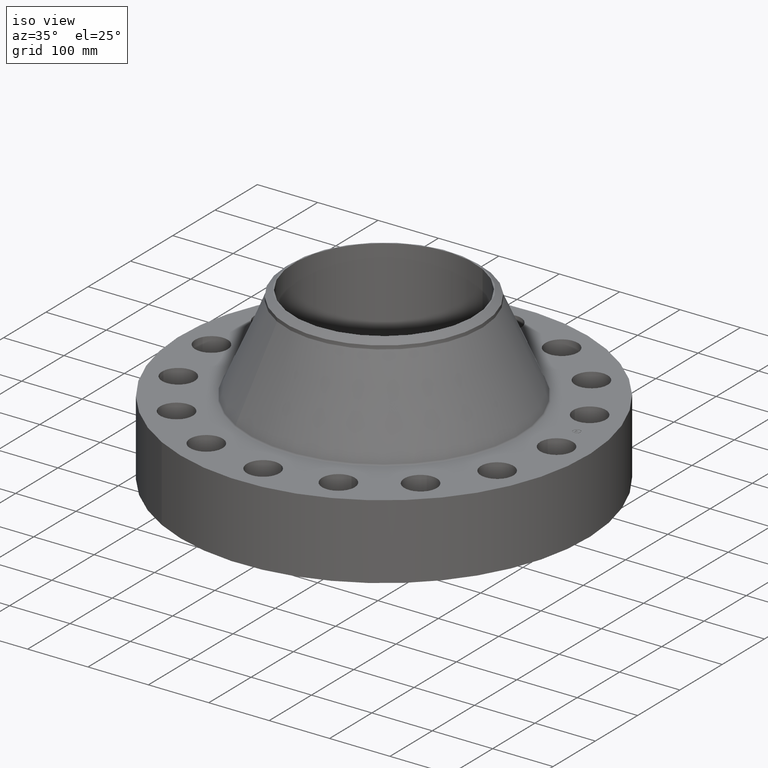
[diagram: clean part render]
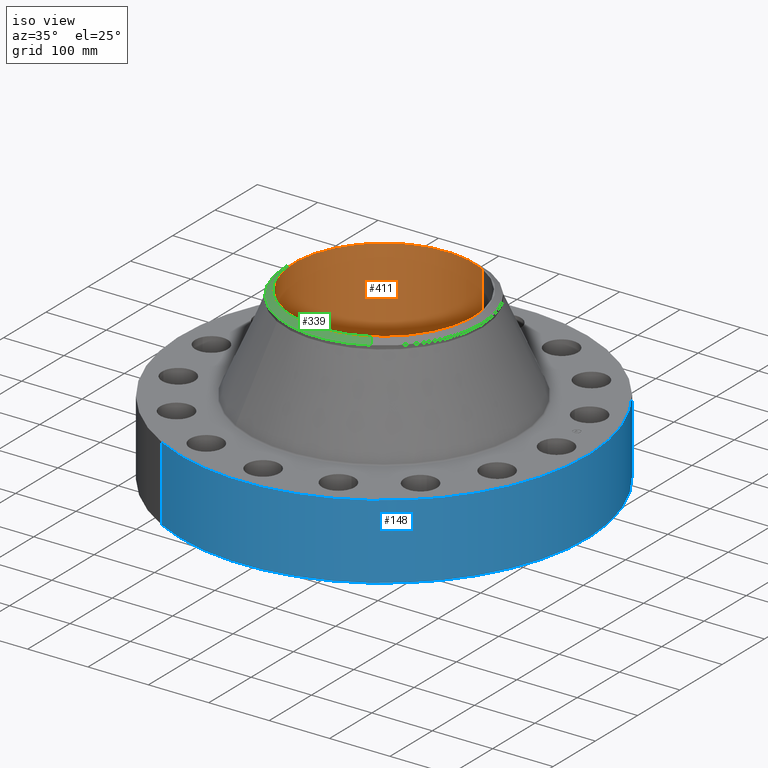
[diagram: same view with three faces highlighted in distinct colors, each labeled with its STEP entity id]
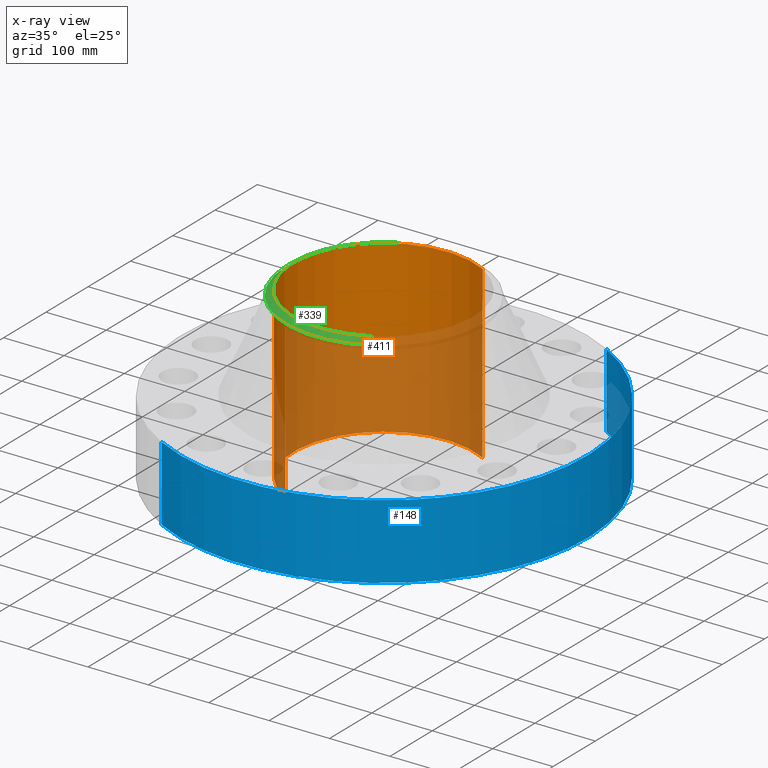
[diagram: x-ray of the same camera — body ghosted, the three highlighted faces saturated]
A machine part, iso view with three faces highlighted in distinct colors.
The next image is the same camera in x-ray (body ghosted, the three faces saturated) — at least one of them is partly hidden behind the body in this view.
Their STEP definitions:

[orange] entity #411 — the highlighted cylindrical surface (partial cylindrical patch) has radius 149.225 mm, axis along (0, 0, -1).
#356=AXIS2_PLACEMENT_3D('Circle Axis2P3D',#354,#355,$) ;
#384=AXIS2_PLACEMENT_3D('Cylinder Axis2P3D',#381,#382,#383) ;
#395=AXIS2_PLACEMENT_3D('Circle Axis2P3D',#393,#394,$) ;
#354=CARTESIAN_POINT('Axis2P3D Location',(0.,0.,11.12)) ;
#358=CARTESIAN_POINT('Vertex',(-2.81662503931,-5.15579755113,11.12)) ;
#360=CARTESIAN_POINT('Vertex',(2.81662503931,5.15579755113,11.12)) ;
#381=CARTESIAN_POINT('Axis2P3D Location',(0.,0.,5.56000000002)) ;
#386=CARTESIAN_POINT('Line Origine',(-2.81662503931,-5.15579755113,5.56000000002)) ;
#390=CARTESIAN_POINT('Vertex',(-2.81662503931,-5.15579755113,-2.68551585169E-014)) ;
#393=CARTESIAN_POINT('Axis2P3D Location',(0.,0.,-2.90930883933E-014)) ;
#397=CARTESIAN_POINT('Vertex',(2.81662503931,5.15579755113,-2.68551585169E-014)) ;
#400=CARTESIAN_POINT('Line Origine',(2.81662503931,5.15579755113,5.56000000002)) ;
#355=DIRECTION('Axis2P3D Direction',(0.,0.,-0.0393700787402)) ;
#382=DIRECTION('Axis2P3D Direction',(0.,0.,-0.0393700787402)) ;
#383=DIRECTION('Axis2P3D XDirection',(0.0188750212049,0.0345504945626,0.)) ;
#387=DIRECTION('Vector Direction',(0.,0.,-0.0393700787402)) ;
#394=DIRECTION('Axis2P3D Direction',(0.,0.,-0.0393700787402)) ;
#401=DIRECTION('Vector Direction',(0.,0.,-0.0393700787402)) ;
#388=VECTOR('Line Direction',#387,0.0393700787402) ;
#402=VECTOR('Line Direction',#401,0.0393700787402) ;
#406=ORIENTED_EDGE('',*,*,#362,.F.) ;
#407=ORIENTED_EDGE('',*,*,#392,.T.) ;
#408=ORIENTED_EDGE('',*,*,#399,.T.) ;
#409=ORIENTED_EDGE('',*,*,#404,.F.) ;
#411=ADVANCED_FACE('PartBody',(#410),#385,.F.) ;
#357=CIRCLE('generated circle',#356,5.87500000002) ;
#396=CIRCLE('generated circle',#395,5.87500000002) ;
#385=CYLINDRICAL_SURFACE('generated cylinder',#384,5.87500000002) ;
#362=EDGE_CURVE('',#359,#361,#357,.T.) ;
#392=EDGE_CURVE('',#359,#391,#389,.T.) ;
#399=EDGE_CURVE('',#391,#398,#396,.T.) ;
#404=EDGE_CURVE('',#361,#398,#403,.T.) ;
#405=EDGE_LOOP('',(#406,#407,#408,#409)) ;
#410=FACE_OUTER_BOUND('',#405,.T.) ;
#389=LINE('Line',#386,#388) ;
#403=LINE('Line',#400,#402) ;
#359=VERTEX_POINT('',#358) ;
#361=VERTEX_POINT('',#360) ;
#391=VERTEX_POINT('',#390) ;
#398=VERTEX_POINT('',#397) ;

[blue] entity #148 — the highlighted cylindrical surface (partial cylindrical patch) has radius 336.55 mm, axis along (0, 0, -1).
#95=AXIS2_PLACEMENT_3D('Cylinder Axis2P3D',#92,#93,#94) ;
#134=AXIS2_PLACEMENT_3D('Circle Axis2P3D',#132,#133,$) ;
#139=AXIS2_PLACEMENT_3D('Circle Axis2P3D',#137,#138,$) ;
#92=CARTESIAN_POINT('Axis2P3D Location',(0.,0.,5.56000000002)) ;
#101=CARTESIAN_POINT('Vertex',(-6.35238838653,-11.6279689451,0.)) ;
#103=CARTESIAN_POINT('Vertex',(6.35238838653,11.6279689451,0.)) ;
#106=CARTESIAN_POINT('Line Origine',(-6.35238838653,-11.6279689451,2.44000000001)) ;
#110=CARTESIAN_POINT('Vertex',(-6.35238838653,-11.6279689451,4.88000000002)) ;
#117=CARTESIAN_POINT('Vertex',(6.35238838653,11.6279689451,4.88000000002)) ;
#120=CARTESIAN_POINT('Line Origine',(6.35238838653,11.6279689451,2.44000000001)) ;
#132=CARTESIAN_POINT('Axis2P3D Location',(0.,0.,0.)) ;
#137=CARTESIAN_POINT('Axis2P3D Location',(0.,0.,4.88000000002)) ;
#93=DIRECTION('Axis2P3D Direction',(0.,0.,-0.0393700787402)) ;
#94=DIRECTION('Axis2P3D XDirection',(0.0188750212049,0.0345504945626,0.)) ;
#107=DIRECTION('Vector Direction',(0.,0.,-0.0393700787402)) ;
#121=DIRECTION('Vector Direction',(0.,0.,-0.0393700787402)) ;
#133=DIRECTION('Axis2P3D Direction',(0.,0.,-0.0393700787402)) ;
#138=DIRECTION('Axis2P3D Direction',(0.,0.,-0.0393700787402)) ;
#108=VECTOR('Line Direction',#107,0.0393700787402) ;
#122=VECTOR('Line Direction',#121,0.0393700787402) ;
#143=ORIENTED_EDGE('',*,*,#136,.F.) ;
#144=ORIENTED_EDGE('',*,*,#124,.T.) ;
#145=ORIENTED_EDGE('',*,*,#141,.T.) ;
#146=ORIENTED_EDGE('',*,*,#112,.F.) ;
#148=ADVANCED_FACE('PartBody',(#147),#96,.T.) ;
#135=CIRCLE('generated circle',#134,13.2500000001) ;
#140=CIRCLE('generated circle',#139,13.2500000001) ;
#96=CYLINDRICAL_SURFACE('generated cylinder',#95,13.2500000001) ;
#112=EDGE_CURVE('',#102,#111,#109,.F.) ;
#124=EDGE_CURVE('',#104,#118,#123,.F.) ;
#136=EDGE_CURVE('',#104,#102,#135,.T.) ;
#141=EDGE_CURVE('',#118,#111,#140,.T.) ;
#142=EDGE_LOOP('',(#143,#144,#145,#146)) ;
#147=FACE_OUTER_BOUND('',#142,.T.) ;
#109=LINE('Line',#106,#108) ;
#123=LINE('Line',#120,#122) ;
#102=VERTEX_POINT('',#101) ;
#104=VERTEX_POINT('',#103) ;
#111=VERTEX_POINT('',#110) ;
#118=VERTEX_POINT('',#117) ;

[green] entity #339 — the highlighted conical surface has half-angle 52.5 deg.
#277=AXIS2_PLACEMENT_3D('Circle Axis2P3D',#275,#276,$) ;
#290=AXIS2_PLACEMENT_3D('Circle Axis2P3D',#288,#289,$) ;
#311=AXIS2_PLACEMENT_3D('Cone Axis2P3D',#308,#309,#310) ;
#322=AXIS2_PLACEMENT_3D('Circle Axis2P3D',#320,#321,$) ;
#258=CARTESIAN_POINT('Vertex',(-3.05633780861,-5.59458883207,10.7967559539)) ;
#272=CARTESIAN_POINT('Vertex',(3.05633780861,-5.59458883207,10.7967559539)) ;
#275=CARTESIAN_POINT('Axis2P3D Location',(0.,0.,10.7967559539)) ;
#288=CARTESIAN_POINT('Axis2P3D Location',(0.,0.,10.7967559539)) ;
#292=CARTESIAN_POINT('Vertex',(-3.05633780861,5.59458883207,10.7967559539)) ;
#308=CARTESIAN_POINT('Axis2P3D Location',(0.,0.,11.12)) ;
#313=CARTESIAN_POINT('Line Origine',(2.95535644517,-5.40974368616,10.958377977)) ;
#317=CARTESIAN_POINT('Vertex',(2.85437508172,-5.22489854025,11.12)) ;
#320=CARTESIAN_POINT('Axis2P3D Location',(0.,0.,11.12)) ;
#324=CARTESIAN_POINT('Vertex',(-2.85437508172,5.22489854025,11.12)) ;
#327=CARTESIAN_POINT('Line Origine',(-2.95535644517,5.40974368616,10.958377977)) ;
#276=DIRECTION('Axis2P3D Direction',(0.,0.,-0.0393700787402)) ;
#289=DIRECTION('Axis2P3D Direction',(0.,0.,-0.0393700787402)) ;
#309=DIRECTION('Axis2P3D Direction',(-0.,-0.,-0.0393700787402)) ;
#310=DIRECTION('Axis2P3D XDirection',(-0.0188750212049,0.0345504945626,0.)) ;
#314=DIRECTION('Vector Direction',(0.014974561121,-0.02741075027,-0.023966985394)) ;
#321=DIRECTION('Axis2P3D Direction',(0.,0.,-0.0393700787402)) ;
#328=DIRECTION('Vector Direction',(-0.014974561121,0.02741075027,-0.023966985394)) ;
#315=VECTOR('Line Direction',#314,0.0393700787402) ;
#329=VECTOR('Line Direction',#328,0.0393700787402) ;
#333=ORIENTED_EDGE('',*,*,#319,.F.) ;
#334=ORIENTED_EDGE('',*,*,#326,.F.) ;
#335=ORIENTED_EDGE('',*,*,#331,.T.) ;
#336=ORIENTED_EDGE('',*,*,#294,.T.) ;
#337=ORIENTED_EDGE('',*,*,#279,.F.) ;
#339=ADVANCED_FACE('PartBody',(#338),#312,.T.) ;
#278=CIRCLE('generated circle',#277,6.37500000003) ;
#291=CIRCLE('generated circle',#290,6.37500000003) ;
#323=CIRCLE('generated circle',#322,5.9537401575) ;
#312=CONICAL_SURFACE('Cone',#311,5.9537401575,0.916297857297) ;
#279=EDGE_CURVE('',#273,#259,#278,.T.) ;
#294=EDGE_CURVE('',#293,#259,#291,.F.) ;
#319=EDGE_CURVE('',#318,#273,#316,.T.) ;
#326=EDGE_CURVE('',#325,#318,#323,.F.) ;
#331=EDGE_CURVE('',#325,#293,#330,.T.) ;
#332=EDGE_LOOP('',(#333,#334,#335,#336,#337)) ;
#338=FACE_OUTER_BOUND('',#332,.T.) ;
#316=LINE('Line',#313,#315) ;
#330=LINE('Line',#327,#329) ;
#259=VERTEX_POINT('',#258) ;
#273=VERTEX_POINT('',#272) ;
#293=VERTEX_POINT('',#292) ;
#318=VERTEX_POINT('',#317) ;
#325=VERTEX_POINT('',#324) ;